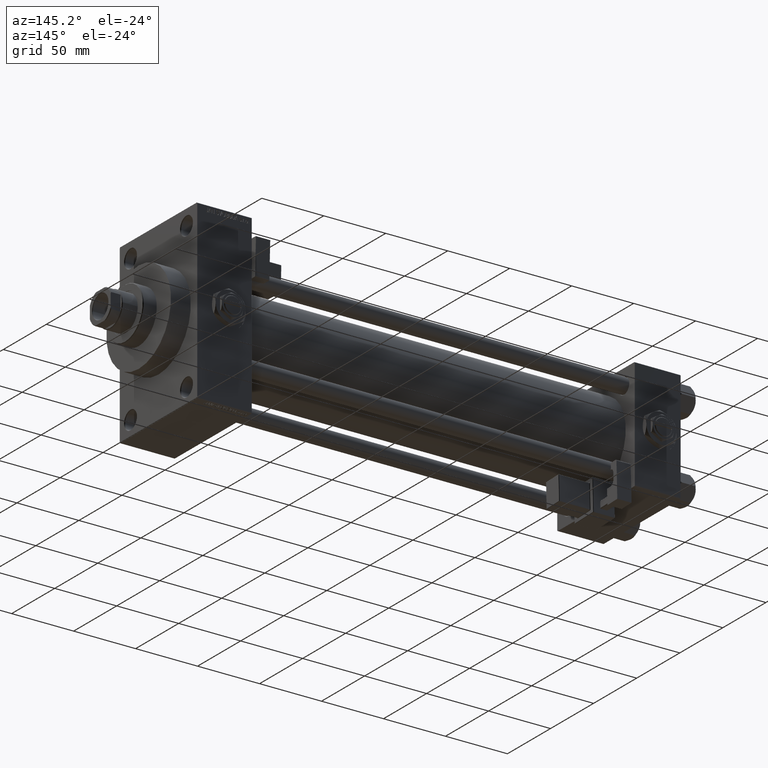
[diagram: clean part render]
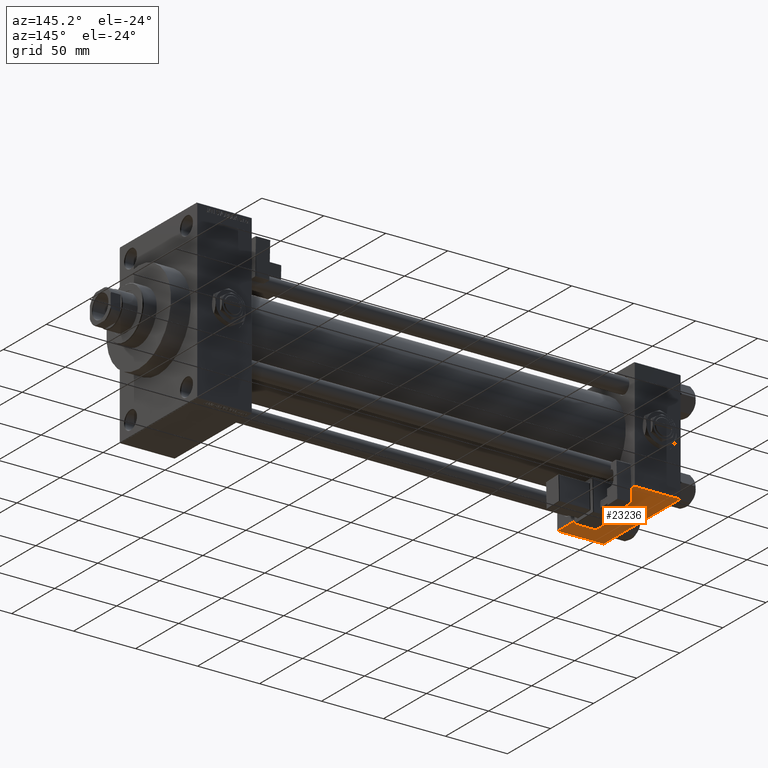
[diagram: same view with one face highlighted and labeled with its STEP entity id]
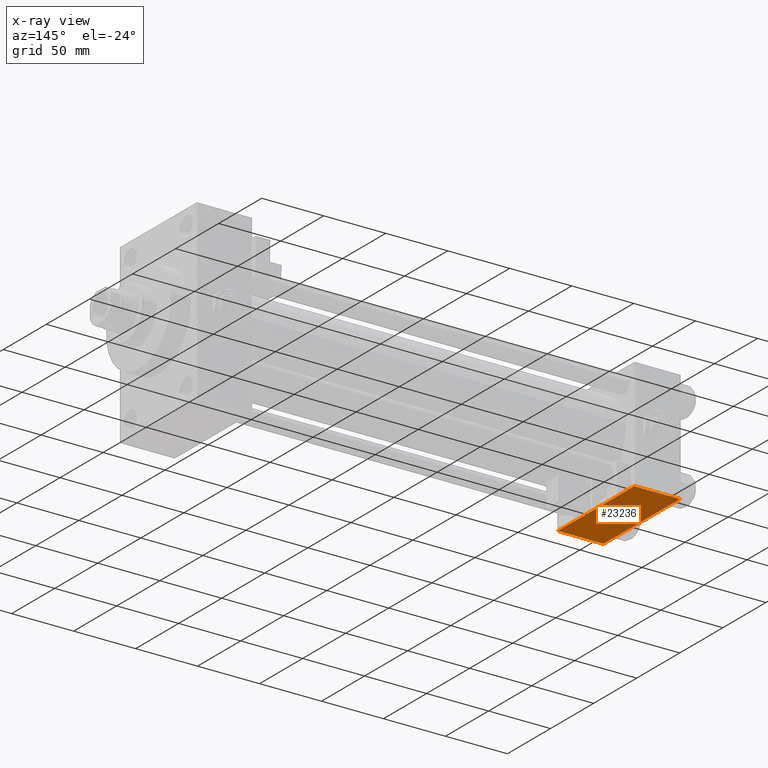
[diagram: x-ray of the same camera — body ghosted, the highlighted face saturated]
A machine part, auxiliary view. The second image highlights one B-rep face of the part: STEP entity #23236.
The next image is the same camera in x-ray: the body ghosted, the highlighted face saturated — about 0% of this face is hidden behind the body in this view.
In plain terms, the highlighted planar face has unit normal (0, 0, -1).
Its self-contained STEP definition (entity closure, byte-faithful):
#1761 = VERTEX_POINT ( 'NONE', #44494 ) ;
#2045 = DIRECTION ( 'NONE',  ( 0.000000000000000000, -1.000000000000000000, -1.541976423090495633E-16 ) ) ;
#2555 = CARTESIAN_POINT ( 'NONE',  ( 0.000000000000000000, -44.49999999999995737, -45.00000000000000000 ) ) ;
#7197 = DIRECTION ( 'NONE',  ( 0.000000000000000000, 1.541976423090495880E-16, -1.000000000000000000 ) ) ;
#10245 = AXIS2_PLACEMENT_3D ( 'NONE', #46778, #7197, #10599 ) ;
#10599 = DIRECTION ( 'NONE',  ( 0.000000000000000000, 1.000000000000000000, 1.541976423090495880E-16 ) ) ;
#11009 = CARTESIAN_POINT ( 'NONE',  ( 0.000000000000000000, 44.49999999999998579, -44.99999999999998579 ) ) ;
#11984 = DIRECTION ( 'NONE',  ( 0.000000000000000000, -1.000000000000000000, -1.541976423090495633E-16 ) ) ;
#13238 = LINE ( 'NONE', #48898, #14275 ) ;
#14275 = VECTOR ( 'NONE', #33285, 1000.000000000000000 ) ;
#14360 = LINE ( 'NONE', #15118, #33105 ) ;
#15118 = CARTESIAN_POINT ( 'NONE',  ( 37.00000000000000000, 44.49999999999998579, -44.99999999999998579 ) ) ;
#18447 = LINE ( 'NONE', #22351, #22189 ) ;
#20545 = EDGE_CURVE ( 'NONE', #38369, #31866, #13238, .T. ) ;
#22189 = VECTOR ( 'NONE', #2045, 1000.000000000000000 ) ;
#22351 = CARTESIAN_POINT ( 'NONE',  ( 37.00000000000000000, 44.99999999999998579, -44.99999999999998579 ) ) ;
#22508 = VECTOR ( 'NONE', #11984, 1000.000000000000000 ) ;
#22834 = PLANE ( 'NONE',  #10245 ) ;
#23236 = ADVANCED_FACE ( 'NONE', ( #46276 ), #22834, .T. ) ;
#23352 = EDGE_LOOP ( 'NONE', ( #25152, #43994, #47392, #36832 ) ) ;
#25152 = ORIENTED_EDGE ( 'NONE', *, *, #45288, .F. ) ;
#26576 = CARTESIAN_POINT ( 'NONE',  ( 0.000000000000000000, 44.99999999999998579, -44.99999999999998579 ) ) ;
#28175 = VERTEX_POINT ( 'NONE', #11009 ) ;
#30992 = DIRECTION ( 'NONE',  ( 1.000000000000000000, 0.000000000000000000, 0.000000000000000000 ) ) ;
#31866 = VERTEX_POINT ( 'NONE', #2555 ) ;
#32605 = CARTESIAN_POINT ( 'NONE',  ( 37.00000000000000000, -44.49999999999995737, -45.00000000000000000 ) ) ;
#33105 = VECTOR ( 'NONE', #30992, 1000.000000000000000 ) ;
#33285 = DIRECTION ( 'NONE',  ( -1.000000000000000000, 0.000000000000000000, 0.000000000000000000 ) ) ;
#35532 = EDGE_CURVE ( 'NONE', #1761, #38369, #18447, .T. ) ;
#36832 = ORIENTED_EDGE ( 'NONE', *, *, #20545, .T. ) ;
#38369 = VERTEX_POINT ( 'NONE', #32605 ) ;
#38540 = EDGE_CURVE ( 'NONE', #28175, #1761, #14360, .T. ) ;
#43994 = ORIENTED_EDGE ( 'NONE', *, *, #38540, .T. ) ;
#44494 = CARTESIAN_POINT ( 'NONE',  ( 37.00000000000000000, 44.49999999999998579, -44.99999999999998579 ) ) ;
#45288 = EDGE_CURVE ( 'NONE', #28175, #31866, #46375, .T. ) ;
#46276 = FACE_OUTER_BOUND ( 'NONE', #23352, .T. ) ;
#46375 = LINE ( 'NONE', #26576, #22508 ) ;
#46778 = CARTESIAN_POINT ( 'NONE',  ( 37.00000000000000000, 44.99999999999998579, -44.99999999999998579 ) ) ;
#47392 = ORIENTED_EDGE ( 'NONE', *, *, #35532, .T. ) ;
#48898 = CARTESIAN_POINT ( 'NONE',  ( 0.000000000000000000, -44.49999999999998579, -45.00000000000000000 ) ) ;